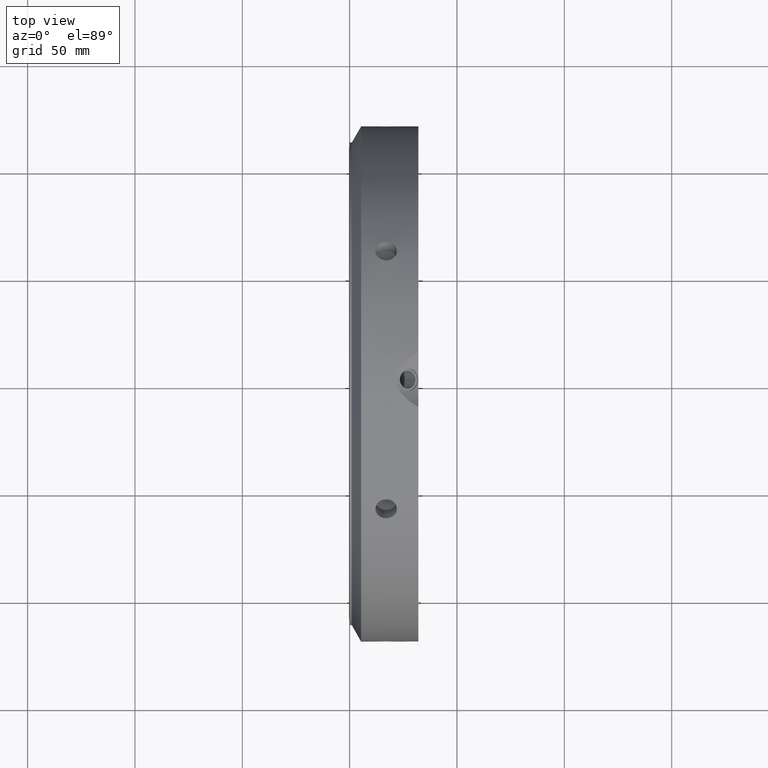
[diagram: clean part render]
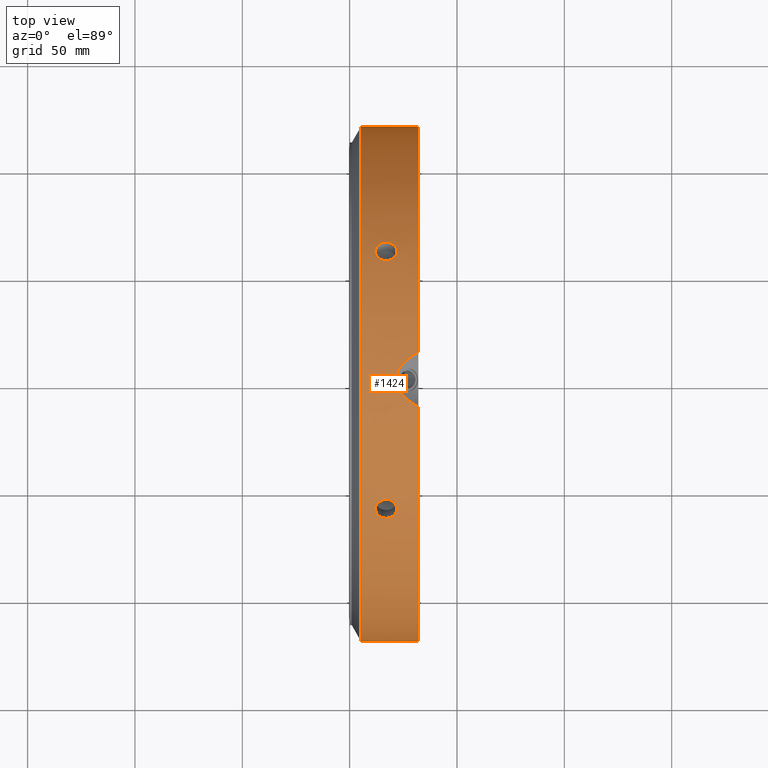
[diagram: same view with one face highlighted and labeled with its STEP entity id]
A machine part, top view. The second image highlights one B-rep face of the part: STEP entity #1424.
In plain terms, the highlighted cylindrical surface (bore or boss wall) has radius 120 mm, axis along (1, 0, 0).
Its self-contained STEP definition (entity closure, byte-faithful):
#152=CARTESIAN_POINT('',(11.999999999999975,60.000000000000099,103.92304845413261));
#153=VERTEX_POINT('',#152);
#154=CARTESIAN_POINT('',(21.999999999999975,60.000000000000114,103.92304845413258));
#155=VERTEX_POINT('',#154);
#156=CARTESIAN_POINT('',(11.999999999999975,60.000000000000107,103.92304845413257));
#157=CARTESIAN_POINT('',(11.999999999999975,60.543767897426008,103.60910391217703));
#158=CARTESIAN_POINT('',(12.125498650008897,61.121020382385034,103.26955186816895));
#159=CARTESIAN_POINT('',(12.635789595804557,62.178032646558677,102.63660035212224));
#160=CARTESIAN_POINT('',(13.020577868134875,62.657938308991355,102.34344128868838));
#161=CARTESIAN_POINT('',(13.908354365187776,63.413691445386476,101.87689112479845));
#162=CARTESIAN_POINT('',(14.470544370927932,63.739960013587023,101.67242838280086));
#163=CARTESIAN_POINT('',(15.702419537593439,64.172055893145966,101.40025857109674));
#164=CARTESIAN_POINT('',(16.372110852169321,64.278021060331284,101.33279828647588));
#165=CARTESIAN_POINT('',(17.627889147830629,64.278021060331284,101.33279828647588));
#166=CARTESIAN_POINT('',(18.297580462406501,64.172055893145952,101.40025857109674));
#167=CARTESIAN_POINT('',(19.529455629072011,63.739960013587023,101.67242838280086));
#168=CARTESIAN_POINT('',(20.091645634812171,63.413691445386476,101.87689112479845));
#169=CARTESIAN_POINT('',(20.979422131865071,62.657938308991355,102.34344128868838));
#170=CARTESIAN_POINT('',(21.364210404195386,62.178032646558677,102.63660035212226));
#171=CARTESIAN_POINT('',(21.87450134999105,61.121020382385026,103.26955186816896));
#172=CARTESIAN_POINT('',(21.999999999999972,60.543767897426015,103.60910391217703));
#173=CARTESIAN_POINT('',(21.999999999999972,60.000000000000114,103.92304845413257));
#174=B_SPLINE_CURVE_WITH_KNOTS('',3,(#156,#157,#158,#159,#160,#161,#162,#163,#164,#165,#166,#167,#168,#169,#170,#171,#172,#173),.UNSPECIFIED.,.F.,.U.,(4,2,2,2,2,2,2,2,4),(0.753466939045017,0.941833664218329,1.130200389391641,1.318567133740837,1.506933878090034,1.69530062243923,1.883667366788427,2.072034091961738,2.26040081713505),.UNSPECIFIED.);
#175=EDGE_CURVE('',#153,#155,#174,.T.);
#177=CARTESIAN_POINT('',(21.999999999999975,60.000000000000107,103.92304845413257));
#178=CARTESIAN_POINT('',(21.999999999999975,59.456232102574205,104.23699299608811));
#179=CARTESIAN_POINT('',(21.874501349991053,58.873545164076752,104.56713229045626));
#180=CARTESIAN_POINT('',(21.364210404195397,57.79688693972961,105.16605600531901));
#181=CARTESIAN_POINT('',(20.979422131865071,57.303050912229885,105.43508696868876));
#182=CARTESIAN_POINT('',(20.091645634812174,56.521130049963872,105.85631330185177));
#183=CARTESIAN_POINT('',(19.529455629072022,56.180925837166228,106.03663879937096));
#184=CARTESIAN_POINT('',(18.297580462406508,55.729171926307757,106.27475990208752));
#185=CARTESIAN_POINT('',(17.627889147830636,55.617767022486916,106.33279828647588));
#186=CARTESIAN_POINT('',(16.999999999999975,55.617767022486916,106.33279828647588));
#187=CARTESIAN_POINT('',(16.372110852169321,55.617767022486916,106.33279828647588));
#188=CARTESIAN_POINT('',(15.70241953759345,55.729171926307764,106.27475990208757));
#189=CARTESIAN_POINT('',(14.470544370927945,56.180925837166235,106.036638799371));
#190=CARTESIAN_POINT('',(13.908354365187776,56.521130049963858,105.85631330185177));
#191=CARTESIAN_POINT('',(13.020577868134875,57.303050912229878,105.43508696868876));
#192=CARTESIAN_POINT('',(12.63578959580455,57.796886939729617,105.16605600531901));
#193=CARTESIAN_POINT('',(12.125498650008895,58.873545164076759,104.56713229045626));
#194=CARTESIAN_POINT('',(11.999999999999975,59.456232102574205,104.23699299608811));
#195=CARTESIAN_POINT('',(11.999999999999975,60.000000000000107,103.92304845413257));
#196=B_SPLINE_CURVE_WITH_KNOTS('',3,(#177,#178,#179,#180,#181,#182,#183,#184,#185,#186,#187,#188,#189,#190,#191,#192,#193,#194,#195),.UNSPECIFIED.,.F.,.U.,(4,2,2,2,3,2,2,2,4),(2.26040081713505,2.448767542308362,2.637134267481673,2.82550101183087,3.013867756180067,3.202234500529264,3.390601244878461,3.578967970051773,3.767334695225085),.UNSPECIFIED.);
#197=EDGE_CURVE('',#155,#153,#196,.T.);
#306=CARTESIAN_POINT('',(11.999999999999975,120.0,-7.993606E-014));
#307=VERTEX_POINT('',#306);
#308=CARTESIAN_POINT('',(21.999999999999975,120.0,-7.105427E-014));
#309=VERTEX_POINT('',#308);
#310=CARTESIAN_POINT('',(11.999999999999975,120.0,-6.397660E-014));
#311=CARTESIAN_POINT('',(11.999999999999975,120.0,-0.627889083911102));
#312=CARTESIAN_POINT('',(12.125498650008897,119.99456554646157,-1.297580422287359));
#313=CARTESIAN_POINT('',(12.635789595804553,119.97491958628808,-2.529455653196803));
#314=CARTESIAN_POINT('',(13.020577868134875,119.96098922122103,-3.091645680000441));
#315=CARTESIAN_POINT('',(13.908354365187776,119.93482149535014,-3.979422177053344));
#316=CARTESIAN_POINT('',(14.470544370927934,119.92088585075305,-4.364210416570189));
#317=CARTESIAN_POINT('',(15.702419537593444,119.90122781945352,-4.874501330990877));
#318=CARTESIAN_POINT('',(16.372110852169321,119.89578808281799,-5.000000000000064));
#319=CARTESIAN_POINT('',(17.627889147830629,119.89578808281799,-5.000000000000064));
#320=CARTESIAN_POINT('',(18.297580462406504,119.90122781945352,-4.874501330990877));
#321=CARTESIAN_POINT('',(19.529455629072011,119.92088585075305,-4.364210416570192));
#322=CARTESIAN_POINT('',(20.091645634812171,119.93482149535014,-3.979422177053344));
#323=CARTESIAN_POINT('',(20.979422131865071,119.96098922122103,-3.091645680000442));
#324=CARTESIAN_POINT('',(21.36421040419539,119.97491958628808,-2.529455653196806));
#325=CARTESIAN_POINT('',(21.874501349991053,119.99456554646157,-1.297580422287364));
#326=CARTESIAN_POINT('',(21.999999999999975,120.0,-0.627889083911104));
#327=CARTESIAN_POINT('',(21.999999999999975,120.0,-6.578071E-014));
#328=B_SPLINE_CURVE_WITH_KNOTS('',3,(#310,#311,#312,#313,#314,#315,#316,#317,#318,#319,#320,#321,#322,#323,#324,#325,#326,#327),.UNSPECIFIED.,.F.,.U.,(4,2,2,2,2,2,2,2,4),(0.753466939045016,0.941833664218328,1.13020038939164,1.318567133740837,1.506933878090033,1.69530062243923,1.883667366788427,2.072034091961739,2.26040081713505),.UNSPECIFIED.);
#329=EDGE_CURVE('',#307,#309,#328,.T.);
#331=CARTESIAN_POINT('',(21.999999999999975,120.0,-6.522560E-014));
#332=CARTESIAN_POINT('',(21.999999999999975,120.0,0.627889083910973));
#333=CARTESIAN_POINT('',(21.874501349991057,119.99456554646157,1.297580422287227));
#334=CARTESIAN_POINT('',(21.364210404195397,119.97491958628808,2.529455653196671));
#335=CARTESIAN_POINT('',(20.979422131865071,119.96098922122103,3.091645680000311));
#336=CARTESIAN_POINT('',(20.091645634812174,119.93482149535015,3.979422177053213));
#337=CARTESIAN_POINT('',(19.529455629072018,119.92088585075305,4.364210416570059));
#338=CARTESIAN_POINT('',(18.297580462406508,119.90122781945352,4.874501330990746));
#339=CARTESIAN_POINT('',(17.627889147830636,119.89578808281799,4.999999999999936));
#340=CARTESIAN_POINT('',(16.999999999999975,119.89578808281799,4.999999999999936));
#341=CARTESIAN_POINT('',(16.372110852169321,119.89578808281799,4.999999999999936));
#342=CARTESIAN_POINT('',(15.702419537593446,119.90122781945352,4.874501330990747));
#343=CARTESIAN_POINT('',(14.470544370927936,119.92088585075305,4.36421041657006));
#344=CARTESIAN_POINT('',(13.90835436518778,119.93482149535014,3.979422177053214));
#345=CARTESIAN_POINT('',(13.020577868134877,119.96098922122104,3.091645680000313));
#346=CARTESIAN_POINT('',(12.635789595804553,119.97491958628808,2.529455653196674));
#347=CARTESIAN_POINT('',(12.125498650008895,119.99456554646157,1.29758042228723));
#348=CARTESIAN_POINT('',(11.999999999999975,120.0,0.627889083910975));
#349=CARTESIAN_POINT('',(11.999999999999975,120.0,-6.369905E-014));
#350=B_SPLINE_CURVE_WITH_KNOTS('',3,(#331,#332,#333,#334,#335,#336,#337,#338,#339,#340,#341,#342,#343,#344,#345,#346,#347,#348,#349),.UNSPECIFIED.,.F.,.U.,(4,2,2,2,3,2,2,2,4),(2.26040081713505,2.448767542308362,2.637134267481673,2.82550101183087,3.013867756180067,3.202234500529264,3.39060124487846,3.578967970051772,3.767334695225083),.UNSPECIFIED.);
#351=EDGE_CURVE('',#309,#307,#350,.T.);
#460=CARTESIAN_POINT('',(11.999999999999975,59.999999999999964,-103.92304845413265));
#461=VERTEX_POINT('',#460);
#462=CARTESIAN_POINT('',(21.999999999999975,59.999999999999993,-103.92304845413264));
#463=VERTEX_POINT('',#462);
#464=CARTESIAN_POINT('',(11.999999999999975,59.999999999999957,-103.92304845413265));
#465=CARTESIAN_POINT('',(11.999999999999975,59.456232102574056,-104.23699299608819));
#466=CARTESIAN_POINT('',(12.1254986500089,58.873545164076582,-104.56713229045634));
#467=CARTESIAN_POINT('',(12.635789595804559,57.796886939729447,-105.16605600531909));
#468=CARTESIAN_POINT('',(13.020577868134877,57.303050912229729,-105.43508696868884));
#469=CARTESIAN_POINT('',(13.908354365187776,56.521130049963716,-105.85631330185183));
#470=CARTESIAN_POINT('',(14.470544370927936,56.180925837166086,-106.03663879937108));
#471=CARTESIAN_POINT('',(15.702419537593444,55.729171926307615,-106.27475990208764));
#472=CARTESIAN_POINT('',(16.372110852169321,55.617767022486753,-106.33279828647595));
#473=CARTESIAN_POINT('',(17.627889147830629,55.617767022486753,-106.33279828647595));
#474=CARTESIAN_POINT('',(18.297580462406501,55.729171926307608,-106.27475990208764));
#475=CARTESIAN_POINT('',(19.529455629072004,56.180925837166072,-106.03663879937108));
#476=CARTESIAN_POINT('',(20.091645634812167,56.521130049963702,-105.85631330185183));
#477=CARTESIAN_POINT('',(20.979422131865068,57.303050912229722,-105.43508696868884));
#478=CARTESIAN_POINT('',(21.36421040419539,57.796886939729447,-105.16605600531906));
#479=CARTESIAN_POINT('',(21.874501349991057,58.873545164076603,-104.56713229045633));
#480=CARTESIAN_POINT('',(21.999999999999972,59.456232102574049,-104.2369929960882));
#481=CARTESIAN_POINT('',(21.999999999999972,59.999999999999957,-103.92304845413267));
#482=B_SPLINE_CURVE_WITH_KNOTS('',3,(#464,#465,#466,#467,#468,#469,#470,#471,#472,#473,#474,#475,#476,#477,#478,#479,#480,#481),.UNSPECIFIED.,.F.,.U.,(4,2,2,2,2,2,2,2,4),(0.753466939045017,0.941833664218328,1.13020038939164,1.318567133740837,1.506933878090034,1.69530062243923,1.883667366788427,2.072034091961739,2.26040081713505),.UNSPECIFIED.);
#483=EDGE_CURVE('',#461,#463,#482,.T.);
#485=CARTESIAN_POINT('',(21.999999999999972,59.999999999999964,-103.92304845413265));
#486=CARTESIAN_POINT('',(21.999999999999972,60.543767897425873,-103.60910391217713));
#487=CARTESIAN_POINT('',(21.874501349991053,61.121020382384884,-103.26955186816903));
#488=CARTESIAN_POINT('',(21.364210404195397,62.178032646558528,-102.63660035212233));
#489=CARTESIAN_POINT('',(20.979422131865071,62.657938308991213,-102.34344128868848));
#490=CARTESIAN_POINT('',(20.091645634812171,63.413691445386334,-101.87689112479856));
#491=CARTESIAN_POINT('',(19.529455629072011,63.739960013586881,-101.67242838280092));
#492=CARTESIAN_POINT('',(18.297580462406501,64.172055893145824,-101.4002585710968));
#493=CARTESIAN_POINT('',(17.627889147830629,64.278021060331156,-101.33279828647595));
#494=CARTESIAN_POINT('',(16.999999999999975,64.278021060331156,-101.33279828647595));
#495=CARTESIAN_POINT('',(16.372110852169321,64.278021060331156,-101.33279828647595));
#496=CARTESIAN_POINT('',(15.70241953759345,64.172055893145824,-101.40025857109683));
#497=CARTESIAN_POINT('',(14.470544370927936,63.739960013586874,-101.67242838280094));
#498=CARTESIAN_POINT('',(13.90835436518778,63.413691445386334,-101.87689112479856));
#499=CARTESIAN_POINT('',(13.020577868134877,62.657938308991206,-102.34344128868847));
#500=CARTESIAN_POINT('',(12.63578959580455,62.178032646558528,-102.63660035212233));
#501=CARTESIAN_POINT('',(12.12549865000889,61.12102038238487,-103.26955186816903));
#502=CARTESIAN_POINT('',(11.999999999999975,60.543767897425852,-103.60910391217715));
#503=CARTESIAN_POINT('',(11.999999999999975,59.999999999999957,-103.92304845413265));
#504=B_SPLINE_CURVE_WITH_KNOTS('',3,(#485,#486,#487,#488,#489,#490,#491,#492,#493,#494,#495,#496,#497,#498,#499,#500,#501,#502,#503),.UNSPECIFIED.,.F.,.U.,(4,2,2,2,3,2,2,2,4),(2.26040081713505,2.448767542308362,2.637134267481673,2.825501011830871,3.013867756180067,3.202234500529265,3.390601244878461,3.578967970051773,3.767334695225085),.UNSPECIFIED.);
#505=EDGE_CURVE('',#463,#461,#504,.T.);
#614=CARTESIAN_POINT('',(11.999999999999975,-60.000000000000043,-103.92304845413263));
#615=VERTEX_POINT('',#614);
#616=CARTESIAN_POINT('',(21.999999999999975,-60.000000000000036,-103.92304845413263));
#617=VERTEX_POINT('',#616);
#618=CARTESIAN_POINT('',(11.999999999999975,-60.000000000000043,-103.92304845413263));
#619=CARTESIAN_POINT('',(11.999999999999975,-60.543767897425944,-103.60910391217712));
#620=CARTESIAN_POINT('',(12.125498650008895,-61.121020382384941,-103.269551868169));
#621=CARTESIAN_POINT('',(12.635789595804548,-62.178032646558599,-102.63660035212229));
#622=CARTESIAN_POINT('',(13.020577868134877,-62.657938308991284,-102.34344128868842));
#623=CARTESIAN_POINT('',(13.908354365187776,-63.413691445386405,-101.87689112479852));
#624=CARTESIAN_POINT('',(14.470544370927929,-63.739960013586952,-101.67242838280089));
#625=CARTESIAN_POINT('',(15.702419537593439,-64.172055893145895,-101.40025857109677));
#626=CARTESIAN_POINT('',(16.372110852169321,-64.278021060331213,-101.33279828647591));
#627=CARTESIAN_POINT('',(17.627889147830629,-64.278021060331213,-101.33279828647591));
#628=CARTESIAN_POINT('',(18.297580462406511,-64.172055893145895,-101.40025857109677));
#629=CARTESIAN_POINT('',(19.529455629072022,-63.739960013586952,-101.67242838280089));
#630=CARTESIAN_POINT('',(20.091645634812174,-63.413691445386405,-101.87689112479852));
#631=CARTESIAN_POINT('',(20.979422131865071,-62.657938308991284,-102.34344128868844));
#632=CARTESIAN_POINT('',(21.364210404195404,-62.178032646558599,-102.63660035212229));
#633=CARTESIAN_POINT('',(21.874501349991057,-61.121020382384941,-103.269551868169));
#634=CARTESIAN_POINT('',(21.999999999999975,-60.543767897425937,-103.60910391217712));
#635=CARTESIAN_POINT('',(21.999999999999975,-60.000000000000036,-103.92304845413263));
#636=B_SPLINE_CURVE_WITH_KNOTS('',3,(#618,#619,#620,#621,#622,#623,#624,#625,#626,#627,#628,#629,#630,#631,#632,#633,#634,#635),.UNSPECIFIED.,.F.,.U.,(4,2,2,2,2,2,2,2,4),(0.753466939045017,0.941833664218327,1.130200389391638,1.318567133740835,1.506933878090032,1.69530062243923,1.883667366788427,2.072034091961737,2.260400817135048),.UNSPECIFIED.);
#637=EDGE_CURVE('',#615,#617,#636,.T.);
#639=CARTESIAN_POINT('',(21.999999999999975,-60.000000000000043,-103.92304845413261));
#640=CARTESIAN_POINT('',(21.999999999999975,-59.456232102574148,-104.23699299608813));
#641=CARTESIAN_POINT('',(21.87450134999105,-58.873545164076688,-104.5671322904563));
#642=CARTESIAN_POINT('',(21.36421040419539,-57.796886939729546,-105.16605600531904));
#643=CARTESIAN_POINT('',(20.979422131865071,-57.303050912229814,-105.43508696868881));
#644=CARTESIAN_POINT('',(20.091645634812174,-56.521130049963801,-105.8563133018518));
#645=CARTESIAN_POINT('',(19.529455629072022,-56.180925837166157,-106.03663879937103));
#646=CARTESIAN_POINT('',(18.297580462406508,-55.729171926307686,-106.2747599020876));
#647=CARTESIAN_POINT('',(17.627889147830636,-55.617767022486845,-106.33279828647591));
#648=CARTESIAN_POINT('',(16.999999999999975,-55.617767022486845,-106.33279828647591));
#649=CARTESIAN_POINT('',(16.372110852169321,-55.617767022486845,-106.33279828647591));
#650=CARTESIAN_POINT('',(15.702419537593446,-55.729171926307693,-106.27475990208758));
#651=CARTESIAN_POINT('',(14.470544370927938,-56.180925837166164,-106.03663879937102));
#652=CARTESIAN_POINT('',(13.90835436518778,-56.521130049963801,-105.8563133018518));
#653=CARTESIAN_POINT('',(13.020577868134877,-57.303050912229814,-105.43508696868881));
#654=CARTESIAN_POINT('',(12.635789595804553,-57.796886939729546,-105.16605600531904));
#655=CARTESIAN_POINT('',(12.125498650008897,-58.873545164076688,-104.5671322904563));
#656=CARTESIAN_POINT('',(11.999999999999975,-59.456232102574134,-104.23699299608813));
#657=CARTESIAN_POINT('',(11.999999999999975,-60.000000000000036,-103.92304845413261));
#658=B_SPLINE_CURVE_WITH_KNOTS('',3,(#639,#640,#641,#642,#643,#644,#645,#646,#647,#648,#649,#650,#651,#652,#653,#654,#655,#656,#657),.UNSPECIFIED.,.F.,.U.,(4,2,2,2,3,2,2,2,4),(2.260400817135048,2.44876754230836,2.637134267481671,2.825501011830868,3.013867756180065,3.202234500529262,3.390601244878459,3.57896797005177,3.767334695225082),.UNSPECIFIED.);
#659=EDGE_CURVE('',#617,#615,#658,.T.);
#768=CARTESIAN_POINT('',(11.999999999999975,-120.0,3.330669E-014));
#769=VERTEX_POINT('',#768);
#770=CARTESIAN_POINT('',(21.999999999999975,-120.0,1.776357E-014));
#771=VERTEX_POINT('',#770);
#772=CARTESIAN_POINT('',(11.999999999999975,-120.0,2.678413E-014));
#773=CARTESIAN_POINT('',(11.999999999999975,-120.0,0.627889083911065));
#774=CARTESIAN_POINT('',(12.125498650008897,-119.99456554646157,1.297580422287321));
#775=CARTESIAN_POINT('',(12.635789595804553,-119.97491958628808,2.529455653196765));
#776=CARTESIAN_POINT('',(13.020577868134875,-119.96098922122103,3.091645680000404));
#777=CARTESIAN_POINT('',(13.908354365187776,-119.93482149535014,3.979422177053307));
#778=CARTESIAN_POINT('',(14.470544370927934,-119.92088585075305,4.364210416570153));
#779=CARTESIAN_POINT('',(15.702419537593444,-119.90122781945352,4.87450133099084));
#780=CARTESIAN_POINT('',(16.372110852169321,-119.89578808281799,5.000000000000028));
#781=CARTESIAN_POINT('',(17.627889147830629,-119.89578808281799,5.000000000000028));
#782=CARTESIAN_POINT('',(18.297580462406504,-119.90122781945352,4.87450133099084));
#783=CARTESIAN_POINT('',(19.529455629072011,-119.92088585075305,4.364210416570154));
#784=CARTESIAN_POINT('',(20.091645634812171,-119.93482149535014,3.979422177053307));
#785=CARTESIAN_POINT('',(20.979422131865071,-119.96098922122103,3.091645680000406));
#786=CARTESIAN_POINT('',(21.364210404195397,-119.97491958628808,2.529455653196766));
#787=CARTESIAN_POINT('',(21.874501349991057,-119.99456554646157,1.297580422287324));
#788=CARTESIAN_POINT('',(21.999999999999972,-120.0,0.627889083911068));
#789=CARTESIAN_POINT('',(21.999999999999972,-120.0,2.955969E-014));
#790=B_SPLINE_CURVE_WITH_KNOTS('',3,(#772,#773,#774,#775,#776,#777,#778,#779,#780,#781,#782,#783,#784,#785,#786,#787,#788,#789),.UNSPECIFIED.,.F.,.U.,(4,2,2,2,2,2,2,2,4),(0.753466939045017,0.941833664218328,1.13020038939164,1.318567133740837,1.506933878090034,1.69530062243923,1.883667366788427,2.072034091961739,2.26040081713505),.UNSPECIFIED.);
#791=EDGE_CURVE('',#769,#771,#790,.T.);
#793=CARTESIAN_POINT('',(21.999999999999975,-120.0,2.858824E-014));
#794=CARTESIAN_POINT('',(21.999999999999975,-120.0,-0.62788908391101));
#795=CARTESIAN_POINT('',(21.874501349991057,-119.99456554646157,-1.297580422287264));
#796=CARTESIAN_POINT('',(21.364210404195397,-119.97491958628808,-2.529455653196709));
#797=CARTESIAN_POINT('',(20.979422131865071,-119.96098922122103,-3.091645680000349));
#798=CARTESIAN_POINT('',(20.091645634812174,-119.93482149535015,-3.979422177053251));
#799=CARTESIAN_POINT('',(19.529455629072018,-119.92088585075305,-4.364210416570097));
#800=CARTESIAN_POINT('',(18.297580462406508,-119.90122781945352,-4.874501330990783));
#801=CARTESIAN_POINT('',(17.627889147830636,-119.89578808281799,-4.999999999999973));
#802=CARTESIAN_POINT('',(16.999999999999975,-119.89578808281799,-4.999999999999973));
#803=CARTESIAN_POINT('',(16.372110852169321,-119.89578808281799,-4.999999999999973));
#804=CARTESIAN_POINT('',(15.702419537593446,-119.90122781945352,-4.874501330990785));
#805=CARTESIAN_POINT('',(14.470544370927936,-119.92088585075305,-4.364210416570098));
#806=CARTESIAN_POINT('',(13.90835436518778,-119.93482149535014,-3.979422177053252));
#807=CARTESIAN_POINT('',(13.020577868134877,-119.96098922122103,-3.09164568000035));
#808=CARTESIAN_POINT('',(12.635789595804553,-119.97491958628808,-2.52945565319671));
#809=CARTESIAN_POINT('',(12.125498650008897,-119.99456554646157,-1.297580422287264));
#810=CARTESIAN_POINT('',(11.999999999999975,-120.0,-0.627889083911011));
#811=CARTESIAN_POINT('',(11.999999999999975,-120.0,2.706169E-014));
#812=B_SPLINE_CURVE_WITH_KNOTS('',3,(#793,#794,#795,#796,#797,#798,#799,#800,#801,#802,#803,#804,#805,#806,#807,#808,#809,#810,#811),.UNSPECIFIED.,.F.,.U.,(4,2,2,2,3,2,2,2,4),(2.26040081713505,2.448767542308362,2.637134267481673,2.82550101183087,3.013867756180067,3.202234500529264,3.39060124487846,3.578967970051772,3.767334695225084),.UNSPECIFIED.);
#813=EDGE_CURVE('',#771,#769,#812,.T.);
#932=CARTESIAN_POINT('',(11.999999999999975,-59.999999999999993,103.92304845413264));
#933=VERTEX_POINT('',#932);
#934=CARTESIAN_POINT('',(21.999999999999975,-59.999999999999993,103.92304845413264));
#935=VERTEX_POINT('',#934);
#936=CARTESIAN_POINT('',(11.999999999999975,-59.999999999999986,103.92304845413264));
#937=CARTESIAN_POINT('',(11.999999999999975,-59.456232102574084,104.23699299608815));
#938=CARTESIAN_POINT('',(12.125498650008893,-58.873545164076646,104.5671322904563));
#939=CARTESIAN_POINT('',(12.635789595804541,-57.796886939729511,105.16605600531904));
#940=CARTESIAN_POINT('',(13.020577868134877,-57.303050912229764,105.43508696868882));
#941=CARTESIAN_POINT('',(13.908354365187776,-56.521130049963745,105.85631330185181));
#942=CARTESIAN_POINT('',(14.470544370927929,-56.1809258371661,106.03663879937103));
#943=CARTESIAN_POINT('',(15.702419537593443,-55.729171926307629,106.2747599020876));
#944=CARTESIAN_POINT('',(16.372110852169321,-55.617767022486788,106.33279828647593));
#945=CARTESIAN_POINT('',(17.627889147830629,-55.617767022486788,106.33279828647593));
#946=CARTESIAN_POINT('',(18.297580462406497,-55.72917192630765,106.2747599020876));
#947=CARTESIAN_POINT('',(19.529455629072004,-56.180925837166114,106.03663879937103));
#948=CARTESIAN_POINT('',(20.091645634812167,-56.521130049963737,105.85631330185181));
#949=CARTESIAN_POINT('',(20.979422131865068,-57.30305091222975,105.43508696868882));
#950=CARTESIAN_POINT('',(21.36421040419539,-57.796886939729475,105.16605600531905));
#951=CARTESIAN_POINT('',(21.874501349991053,-58.873545164076617,104.56713229045631));
#952=CARTESIAN_POINT('',(21.999999999999975,-59.456232102574091,104.23699299608816));
#953=CARTESIAN_POINT('',(21.999999999999975,-59.999999999999993,103.92304845413264));
#954=B_SPLINE_CURVE_WITH_KNOTS('',3,(#936,#937,#938,#939,#940,#941,#942,#943,#944,#945,#946,#947,#948,#949,#950,#951,#952,#953),.UNSPECIFIED.,.F.,.U.,(4,2,2,2,2,2,2,2,4),(0.753466939045017,0.941833664218328,1.13020038939164,1.318567133740837,1.506933878090034,1.69530062243923,1.883667366788427,2.072034091961739,2.26040081713505),.UNSPECIFIED.);
#955=EDGE_CURVE('',#933,#935,#954,.T.);
#957=CARTESIAN_POINT('',(21.999999999999975,-60.0,103.92304845413264));
#958=CARTESIAN_POINT('',(21.999999999999975,-60.543767897425901,103.60910391217712));
#959=CARTESIAN_POINT('',(21.87450134999105,-61.121020382384906,103.26955186816902));
#960=CARTESIAN_POINT('',(21.36421040419539,-62.178032646558556,102.63660035212231));
#961=CARTESIAN_POINT('',(20.979422131865071,-62.657938308991248,102.34344128868844));
#962=CARTESIAN_POINT('',(20.091645634812174,-63.413691445386377,101.87689112479853));
#963=CARTESIAN_POINT('',(19.529455629072014,-63.739960013586924,101.67242838280092));
#964=CARTESIAN_POINT('',(18.297580462406504,-64.172055893145867,101.4002585710968));
#965=CARTESIAN_POINT('',(17.627889147830629,-64.278021060331184,101.33279828647593));
#966=CARTESIAN_POINT('',(16.999999999999975,-64.278021060331184,101.33279828647593));
#967=CARTESIAN_POINT('',(16.372110852169321,-64.278021060331184,101.33279828647593));
#968=CARTESIAN_POINT('',(15.702419537593448,-64.172055893145867,101.4002585710968));
#969=CARTESIAN_POINT('',(14.470544370927936,-63.739960013586924,101.67242838280092));
#970=CARTESIAN_POINT('',(13.90835436518778,-63.413691445386377,101.87689112479853));
#971=CARTESIAN_POINT('',(13.020577868134877,-62.657938308991241,102.34344128868844));
#972=CARTESIAN_POINT('',(12.635789595804559,-62.178032646558563,102.63660035212233));
#973=CARTESIAN_POINT('',(12.1254986500089,-61.121020382384906,103.26955186816903));
#974=CARTESIAN_POINT('',(11.999999999999975,-60.543767897425894,103.60910391217712));
#975=CARTESIAN_POINT('',(11.999999999999975,-59.999999999999986,103.92304845413264));
#976=B_SPLINE_CURVE_WITH_KNOTS('',3,(#957,#958,#959,#960,#961,#962,#963,#964,#965,#966,#967,#968,#969,#970,#971,#972,#973,#974,#975),.UNSPECIFIED.,.F.,.U.,(4,2,2,2,3,2,2,2,4),(2.26040081713505,2.448767542308362,2.637134267481673,2.82550101183087,3.013867756180067,3.202234500529265,3.390601244878461,3.578967970051773,3.767334695225085),.UNSPECIFIED.);
#977=EDGE_CURVE('',#935,#933,#976,.T.);
#1125=CARTESIAN_POINT('',(31.999999999999975,96.948914571262094,-70.717098098367458));
#1126=VERTEX_POINT('',#1125);
#1127=CARTESIAN_POINT('',(31.999999999999975,109.71726072073344,-48.601673838856669));
#1128=VERTEX_POINT('',#1127);
#1136=CARTESIAN_POINT('',(31.999999999999986,109.71726072073344,-48.601673838856669));
#1137=CARTESIAN_POINT('',(30.812733242663501,109.45503634820764,-49.193639867498717));
#1138=CARTESIAN_POINT('',(29.675521768672514,109.16756389677619,-49.8298991433076));
#1139=CARTESIAN_POINT('',(26.839589576186604,108.32158518888349,-51.652670368700377));
#1140=CARTESIAN_POINT('',(25.057211050929993,107.64416029536376,-53.066327931372903));
#1141=CARTESIAN_POINT('',(23.091423417635646,106.40235834572363,-55.492010886143248));
#1142=CARTESIAN_POINT('',(22.552462418377761,105.95056560544737,-56.351659804430028));
#1143=CARTESIAN_POINT('',(21.810369880551068,104.98138629569361,-58.137255236174425));
#1144=CARTESIAN_POINT('',(21.607695154586743,104.46384733913146,-59.063308854505451));
#1145=CARTESIAN_POINT('',(21.607695154586743,103.38224956913376,-60.936691145494649));
#1146=CARTESIAN_POINT('',(21.810369880551079,102.83903308867366,-61.84791983849108));
#1147=CARTESIAN_POINT('',(22.552462418377765,101.77725173877846,-63.58005145743229));
#1148=CARTESIAN_POINT('',(23.091423417635646,101.25867030734442,-64.401139906900298));
#1149=CARTESIAN_POINT('',(25.057211050930004,99.778868221806476,-66.689413419142895));
#1150=CARTESIAN_POINT('',(26.83958957618664,98.893317307039936,-67.982909367423204));
#1151=CARTESIAN_POINT('',(29.675521768672539,97.737740474508854,-69.626934032215388));
#1152=CARTESIAN_POINT('',(30.812733242663505,97.33046000398059,-70.194022115947647));
#1153=CARTESIAN_POINT('',(31.999999999999975,96.948914571262094,-70.717098098367444));
#1154=B_SPLINE_CURVE_WITH_KNOTS('',3,(#1136,#1137,#1138,#1139,#1140,#1141,#1142,#1143,#1144,#1145,#1146,#1147,#1148,#1149,#1150,#1151,#1152,#1153),.UNSPECIFIED.,.F.,.U.,(4,2,2,2,2,2,2,2,4),(2.449963889655858,2.843723678785597,3.492682340784208,3.817161671783514,4.141641002782819,4.466120333782126,4.790599664781432,5.439558326780045,5.833318115909779),.UNSPECIFIED.);
#1155=EDGE_CURVE('',#1128,#1126,#1154,.T.);
#1296=CARTESIAN_POINT('',(31.999999999999975,-109.71726072073352,-48.601673838856463));
#1297=VERTEX_POINT('',#1296);
#1298=CARTESIAN_POINT('',(31.999999999999979,-96.948914571262179,-70.717098098367345));
#1299=VERTEX_POINT('',#1298);
#1307=CARTESIAN_POINT('',(31.999999999999964,-96.948914571262151,-70.717098098367359));
#1308=CARTESIAN_POINT('',(30.747122259532421,-97.35154504724926,-70.165115781927227));
#1309=CARTESIAN_POINT('',(29.550028585319094,-97.782776755499583,-69.564220602159978));
#1310=CARTESIAN_POINT('',(26.70302415472247,-98.959657293446881,-67.88614634246602));
#1311=CARTESIAN_POINT('',(24.963322896508096,-99.836291293725424,-66.602873067236303));
#1312=CARTESIAN_POINT('',(23.048428494165645,-101.29813773128686,-64.338901653524189));
#1313=CARTESIAN_POINT('',(22.524223339321733,-101.81001240609052,-63.527360541948063));
#1314=CARTESIAN_POINT('',(21.803606306769545,-102.85673151451789,-61.818257382796638));
#1315=CARTESIAN_POINT('',(21.607695154586768,-103.39159860926868,-60.920498132978942));
#1316=CARTESIAN_POINT('',(21.607695154586768,-104.4544982989966,-59.079501867021008));
#1317=CARTESIAN_POINT('',(21.803606306769545,-104.96454706844577,-58.167413750409587));
#1318=CARTESIAN_POINT('',(22.524223339321729,-105.92131426774546,-56.406376832309192));
#1319=CARTESIAN_POINT('',(23.048428494165655,-106.36819214918398,-55.557309804587248));
#1320=CARTESIAN_POINT('',(24.963322896508107,-107.59792568811974,-53.159327946371207));
#1321=CARTESIAN_POINT('',(26.703024154722499,-108.27095594432708,-51.758503994693953));
#1322=CARTESIAN_POINT('',(29.55002858531914,-109.13577061368517,-49.900258421765109));
#1323=CARTESIAN_POINT('',(30.747122259532471,-109.4405452502501,-49.226353217619305));
#1324=CARTESIAN_POINT('',(32.000000000000028,-109.71726072073349,-48.60167383885657));
#1325=B_SPLINE_CURVE_WITH_KNOTS('',3,(#1307,#1308,#1309,#1310,#1311,#1312,#1313,#1314,#1315,#1316,#1317,#1318,#1319,#1320,#1321,#1322,#1323,#1324),.UNSPECIFIED.,.F.,.U.,(4,2,2,2,2,2,2,2,4),(2.3785752294756,2.793250434751319,3.430990248588067,3.749860155506441,4.068730062424814,4.387599969343189,4.706469876261563,5.344209690098312,5.758884895374038),.UNSPECIFIED.);
#1326=EDGE_CURVE('',#1299,#1297,#1325,.T.);
#1334=CARTESIAN_POINT('',(18.665063509461064,0.0,0.0));
#1335=DIRECTION('',(1.0,0.0,0.0));
#1336=DIRECTION('',(0.0,1.0,0.0));
#1337=AXIS2_PLACEMENT_3D('',#1334,#1335,#1336);
#1338=CYLINDRICAL_SURFACE('',#1337,120.0);
#1339=CARTESIAN_POINT('',(5.330127018922149,120.0,0.0));
#1340=VERTEX_POINT('',#1339);
#1341=CARTESIAN_POINT('',(5.330127018922149,0.0,0.0));
#1342=DIRECTION('',(1.0,0.0,0.0));
#1343=DIRECTION('',(0.0,1.0,0.0));
#1344=AXIS2_PLACEMENT_3D('',#1341,#1342,#1343);
#1345=CIRCLE('',#1344,120.0);
#1346=EDGE_CURVE('',#1340,#1340,#1345,.T.);
#1347=ORIENTED_EDGE('',*,*,#1346,.T.);
#1348=EDGE_LOOP('',(#1347));
#1349=FACE_OUTER_BOUND('',#1348,.T.);
#1350=ORIENTED_EDGE('',*,*,#175,.T.);
#1351=ORIENTED_EDGE('',*,*,#197,.T.);
#1352=EDGE_LOOP('',(#1350,#1351));
#1353=FACE_BOUND('',#1352,.T.);
#1354=ORIENTED_EDGE('',*,*,#329,.T.);
#1355=ORIENTED_EDGE('',*,*,#351,.T.);
#1356=EDGE_LOOP('',(#1354,#1355));
#1357=FACE_BOUND('',#1356,.T.);
#1358=ORIENTED_EDGE('',*,*,#483,.T.);
#1359=ORIENTED_EDGE('',*,*,#505,.T.);
#1360=EDGE_LOOP('',(#1358,#1359));
#1361=FACE_BOUND('',#1360,.T.);
#1362=ORIENTED_EDGE('',*,*,#637,.T.);
#1363=ORIENTED_EDGE('',*,*,#659,.T.);
#1364=EDGE_LOOP('',(#1362,#1363));
#1365=FACE_BOUND('',#1364,.T.);
#1366=ORIENTED_EDGE('',*,*,#791,.T.);
#1367=ORIENTED_EDGE('',*,*,#813,.T.);
#1368=EDGE_LOOP('',(#1366,#1367));
#1369=FACE_BOUND('',#1368,.T.);
#1370=ORIENTED_EDGE('',*,*,#955,.T.);
#1371=ORIENTED_EDGE('',*,*,#977,.T.);
#1372=EDGE_LOOP('',(#1370,#1371));
#1373=FACE_BOUND('',#1372,.T.);
#1374=ORIENTED_EDGE('',*,*,#1155,.T.);
#1375=CARTESIAN_POINT('',(31.999999999999975,0.0,0.0));
#1376=DIRECTION('',(1.0,0.0,0.0));
#1377=DIRECTION('',(0.0,1.0,0.0));
#1378=AXIS2_PLACEMENT_3D('',#1375,#1376,#1377);
#1379=CIRCLE('',#1378,120.0);
#1380=EDGE_CURVE('',#1299,#1126,#1379,.T.);
#1381=ORIENTED_EDGE('',*,*,#1380,.F.);
#1382=ORIENTED_EDGE('',*,*,#1326,.T.);
#1383=CARTESIAN_POINT('',(31.999999999999975,-12.768346149471334,119.31877193722403));
#1384=VERTEX_POINT('',#1383);
#1385=CARTESIAN_POINT('',(31.999999999999975,0.0,0.0));
#1386=DIRECTION('',(1.0,0.0,0.0));
#1387=DIRECTION('',(0.0,1.0,0.0));
#1388=AXIS2_PLACEMENT_3D('',#1385,#1386,#1387);
#1389=CIRCLE('',#1388,120.0);
#1390=EDGE_CURVE('',#1384,#1297,#1389,.T.);
#1391=ORIENTED_EDGE('',*,*,#1390,.F.);
#1392=CARTESIAN_POINT('',(31.999999999999975,12.768346149471334,119.31877193722403));
#1393=VERTEX_POINT('',#1392);
#1394=CARTESIAN_POINT('',(31.999999999999975,-12.768346149471331,119.31877193722401));
#1395=CARTESIAN_POINT('',(29.915410762441525,-11.63802257291638,119.43972828342204));
#1396=CARTESIAN_POINT('',(27.97744264134705,-10.34914094217177,119.56218416273961));
#1397=CARTESIAN_POINT('',(25.078138513521719,-7.753439684912522,119.75442432898529));
#1398=CARTESIAN_POINT('',(23.857155404332921,-6.395392267240395,119.83911279192917));
#1399=CARTESIAN_POINT('',(22.55044556444151,-4.115483971883144,119.93181945850255));
#1400=CARTESIAN_POINT('',(22.200593113174833,-3.314531103733666,119.9570240767631));
#1401=CARTESIAN_POINT('',(21.728963142474157,-1.673250094376307,119.9911412396647));
#1402=CARTESIAN_POINT('',(21.607695154586743,-0.832774462124699,120.0));
#1403=CARTESIAN_POINT('',(21.607695154586743,0.832774462124699,120.0));
#1404=CARTESIAN_POINT('',(21.728963142474157,1.673250094376307,119.9911412396647));
#1405=CARTESIAN_POINT('',(22.200593113174833,3.314531103733666,119.9570240767631));
#1406=CARTESIAN_POINT('',(22.55044556444151,4.115483971883144,119.93181945850255));
#1407=CARTESIAN_POINT('',(23.857155404332921,6.395392267240395,119.83911279192917));
#1408=CARTESIAN_POINT('',(25.078138513521719,7.753439684912522,119.75442432898529));
#1409=CARTESIAN_POINT('',(27.97744264134705,10.34914094217177,119.56218416273963));
#1410=CARTESIAN_POINT('',(29.915410762441532,11.638022572916384,119.43972828342204));
#1411=CARTESIAN_POINT('',(31.999999999999975,12.768346149471332,119.31877193722401));
#1412=B_SPLINE_CURVE_WITH_KNOTS('',3,(#1394,#1395,#1396,#1397,#1398,#1399,#1400,#1401,#1402,#1403,#1404,#1405,#1406,#1407,#1408,#1409,#1410,#1411),.UNSPECIFIED.,.F.,.U.,(4,2,2,2,2,2,2,2,4),(1.430194358624897,2.099397815558224,2.599062492833045,2.848894831470455,3.098727170107865,3.348559508745274,3.598391847382684,4.098056524657505,4.767259981590832),.UNSPECIFIED.);
#1413=EDGE_CURVE('',#1384,#1393,#1412,.T.);
#1414=ORIENTED_EDGE('',*,*,#1413,.T.);
#1415=CARTESIAN_POINT('',(31.999999999999975,0.0,0.0));
#1416=DIRECTION('',(1.0,0.0,0.0));
#1417=DIRECTION('',(0.0,1.0,0.0));
#1418=AXIS2_PLACEMENT_3D('',#1415,#1416,#1417);
#1419=CIRCLE('',#1418,120.0);
#1420=EDGE_CURVE('',#1128,#1393,#1419,.T.);
#1421=ORIENTED_EDGE('',*,*,#1420,.F.);
#1422=EDGE_LOOP('',(#1374,#1381,#1382,#1391,#1414,#1421));
#1423=FACE_BOUND('',#1422,.T.);
#1424=ADVANCED_FACE('',(#1349,#1353,#1357,#1361,#1365,#1369,#1373,#1423),#1338,.T.);